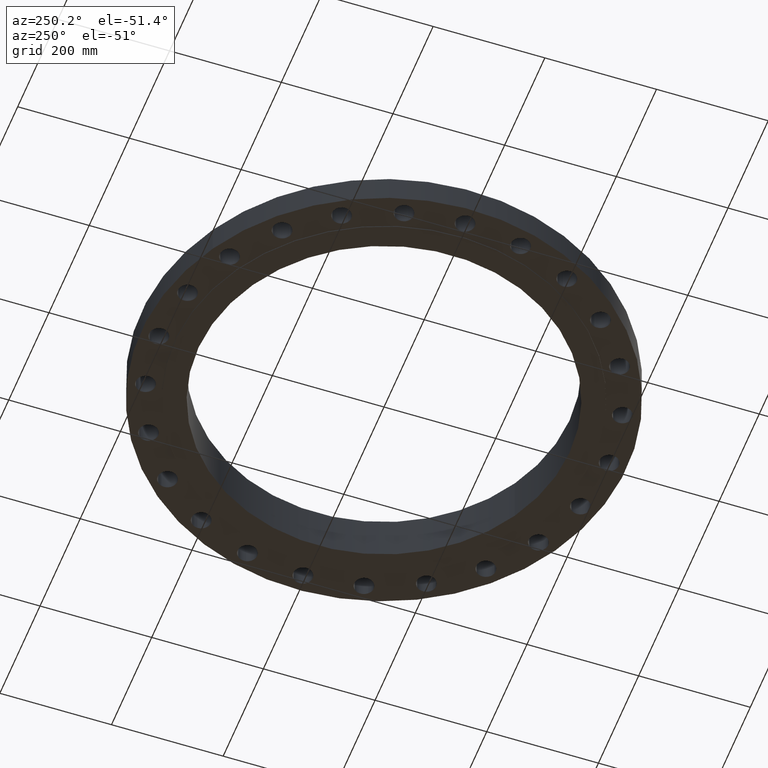
[diagram: clean part render]
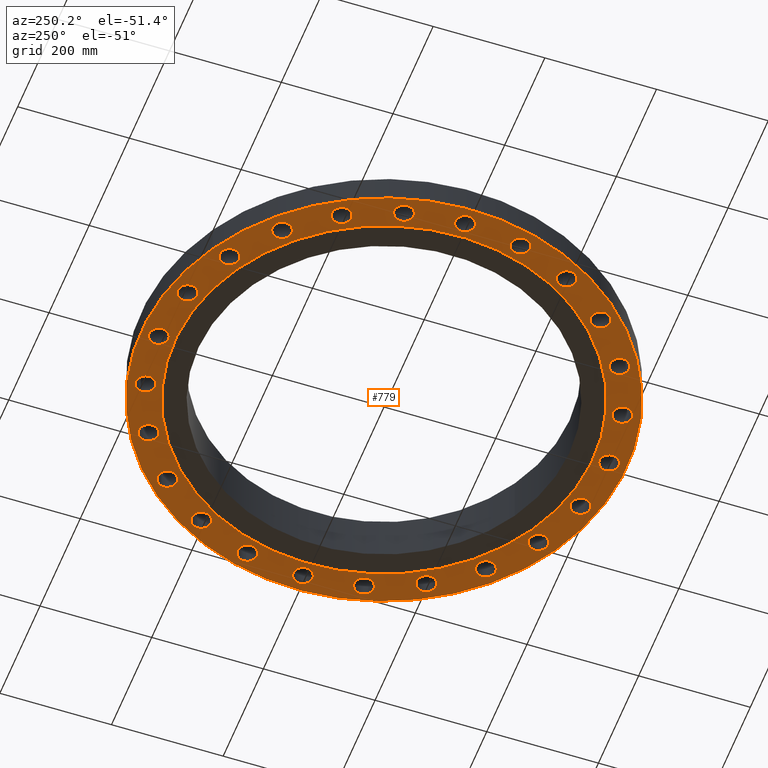
[diagram: same view with one face highlighted and labeled with its STEP entity id]
A machine part, auxiliary view. The second image highlights one B-rep face of the part: STEP entity #779.
In plain terms, the highlighted planar face has unit normal (0, 0, 1).
Its self-contained STEP definition (entity closure, byte-faithful):
#51=AXIS2_PLACEMENT_3D('Circle Axis2P3D',#49,#50,$) ;
#77=AXIS2_PLACEMENT_3D('Circle Axis2P3D',#75,#76,$) ;
#122=AXIS2_PLACEMENT_3D('Circle Axis2P3D',#120,#121,$) ;
#139=AXIS2_PLACEMENT_3D('Circle Axis2P3D',#137,#138,$) ;
#165=AXIS2_PLACEMENT_3D('Circle Axis2P3D',#163,#164,$) ;
#191=AXIS2_PLACEMENT_3D('Circle Axis2P3D',#189,#190,$) ;
#351=AXIS2_PLACEMENT_3D('Plane Axis2P3D',#348,#349,#350) ;
#367=AXIS2_PLACEMENT_3D('Circle Axis2P3D',#365,#366,$) ;
#376=AXIS2_PLACEMENT_3D('Circle Axis2P3D',#374,#375,$) ;
#385=AXIS2_PLACEMENT_3D('Circle Axis2P3D',#383,#384,$) ;
#394=AXIS2_PLACEMENT_3D('Circle Axis2P3D',#392,#393,$) ;
#403=AXIS2_PLACEMENT_3D('Circle Axis2P3D',#401,#402,$) ;
#412=AXIS2_PLACEMENT_3D('Circle Axis2P3D',#410,#411,$) ;
#421=AXIS2_PLACEMENT_3D('Circle Axis2P3D',#419,#420,$) ;
#430=AXIS2_PLACEMENT_3D('Circle Axis2P3D',#428,#429,$) ;
#439=AXIS2_PLACEMENT_3D('Circle Axis2P3D',#437,#438,$) ;
#448=AXIS2_PLACEMENT_3D('Circle Axis2P3D',#446,#447,$) ;
#457=AXIS2_PLACEMENT_3D('Circle Axis2P3D',#455,#456,$) ;
#466=AXIS2_PLACEMENT_3D('Circle Axis2P3D',#464,#465,$) ;
#475=AXIS2_PLACEMENT_3D('Circle Axis2P3D',#473,#474,$) ;
#484=AXIS2_PLACEMENT_3D('Circle Axis2P3D',#482,#483,$) ;
#493=AXIS2_PLACEMENT_3D('Circle Axis2P3D',#491,#492,$) ;
#502=AXIS2_PLACEMENT_3D('Circle Axis2P3D',#500,#501,$) ;
#511=AXIS2_PLACEMENT_3D('Circle Axis2P3D',#509,#510,$) ;
#520=AXIS2_PLACEMENT_3D('Circle Axis2P3D',#518,#519,$) ;
#529=AXIS2_PLACEMENT_3D('Circle Axis2P3D',#527,#528,$) ;
#538=AXIS2_PLACEMENT_3D('Circle Axis2P3D',#536,#537,$) ;
#547=AXIS2_PLACEMENT_3D('Circle Axis2P3D',#545,#546,$) ;
#556=AXIS2_PLACEMENT_3D('Circle Axis2P3D',#554,#555,$) ;
#565=AXIS2_PLACEMENT_3D('Circle Axis2P3D',#563,#564,$) ;
#574=AXIS2_PLACEMENT_3D('Circle Axis2P3D',#572,#573,$) ;
#583=AXIS2_PLACEMENT_3D('Circle Axis2P3D',#581,#582,$) ;
#592=AXIS2_PLACEMENT_3D('Circle Axis2P3D',#590,#591,$) ;
#601=AXIS2_PLACEMENT_3D('Circle Axis2P3D',#599,#600,$) ;
#610=AXIS2_PLACEMENT_3D('Circle Axis2P3D',#608,#609,$) ;
#619=AXIS2_PLACEMENT_3D('Circle Axis2P3D',#617,#618,$) ;
#628=AXIS2_PLACEMENT_3D('Circle Axis2P3D',#626,#627,$) ;
#637=AXIS2_PLACEMENT_3D('Circle Axis2P3D',#635,#636,$) ;
#646=AXIS2_PLACEMENT_3D('Circle Axis2P3D',#644,#645,$) ;
#655=AXIS2_PLACEMENT_3D('Circle Axis2P3D',#653,#654,$) ;
#664=AXIS2_PLACEMENT_3D('Circle Axis2P3D',#662,#663,$) ;
#673=AXIS2_PLACEMENT_3D('Circle Axis2P3D',#671,#672,$) ;
#682=AXIS2_PLACEMENT_3D('Circle Axis2P3D',#680,#681,$) ;
#691=AXIS2_PLACEMENT_3D('Circle Axis2P3D',#689,#690,$) ;
#700=AXIS2_PLACEMENT_3D('Circle Axis2P3D',#698,#699,$) ;
#709=AXIS2_PLACEMENT_3D('Circle Axis2P3D',#707,#708,$) ;
#718=AXIS2_PLACEMENT_3D('Circle Axis2P3D',#716,#717,$) ;
#727=AXIS2_PLACEMENT_3D('Circle Axis2P3D',#725,#726,$) ;
#736=AXIS2_PLACEMENT_3D('Circle Axis2P3D',#734,#735,$) ;
#745=AXIS2_PLACEMENT_3D('Circle Axis2P3D',#743,#744,$) ;
#754=AXIS2_PLACEMENT_3D('Circle Axis2P3D',#752,#753,$) ;
#763=AXIS2_PLACEMENT_3D('Circle Axis2P3D',#761,#762,$) ;
#772=AXIS2_PLACEMENT_3D('Circle Axis2P3D',#770,#771,$) ;
#44=CARTESIAN_POINT('Vertex',(15.2716619888,0.329605057792,0.)) ;
#49=CARTESIAN_POINT('Axis2P3D Location',(15.8750000001,0.,0.)) ;
#53=CARTESIAN_POINT('Vertex',(16.4783380114,-0.329605057792,0.)) ;
#75=CARTESIAN_POINT('Axis2P3D Location',(15.8750000001,0.,0.)) ;
#101=CARTESIAN_POINT('Vertex',(-8.21016234863,15.0286013724,-4.86749748119E-014)) ;
#117=CARTESIAN_POINT('Vertex',(8.21016234863,-15.0286013724,-4.86749748119E-014)) ;
#120=CARTESIAN_POINT('Axis2P3D Location',(0.,0.,-4.86749748119E-014)) ;
#137=CARTESIAN_POINT('Axis2P3D Location',(0.,0.,-4.86749748119E-014)) ;
#160=CARTESIAN_POINT('Vertex',(7.07152669444,-12.9443427879,-1.53857679003E-014)) ;
#163=CARTESIAN_POINT('Axis2P3D Location',(0.,0.,-1.53857679003E-014)) ;
#167=CARTESIAN_POINT('Vertex',(-7.07152669444,12.9443427879,-1.53857679003E-014)) ;
#189=CARTESIAN_POINT('Axis2P3D Location',(0.,0.,-1.53857679003E-014)) ;
#348=CARTESIAN_POINT('Axis2P3D Location',(0.,17.1250000001,0.)) ;
#365=CARTESIAN_POINT('Axis2P3D Location',(15.3340724924,4.10875234102,0.)) ;
#369=CARTESIAN_POINT('Vertex',(14.665984659,4.27097101086,0.)) ;
#371=CARTESIAN_POINT('Vertex',(16.0021603258,3.94653367118,0.)) ;
#374=CARTESIAN_POINT('Axis2P3D Location',(15.3340724924,4.10875234102,0.)) ;
#383=CARTESIAN_POINT('Axis2P3D Location',(13.7481532851,7.93750000003,0.)) ;
#387=CARTESIAN_POINT('Vertex',(13.0608447114,7.92127734764,0.)) ;
#389=CARTESIAN_POINT('Vertex',(14.4354618589,7.95372265242,0.)) ;
#392=CARTESIAN_POINT('Axis2P3D Location',(13.7481532851,7.93750000003,0.)) ;
#401=CARTESIAN_POINT('Axis2P3D Location',(11.2253201514,11.2253201514,0.)) ;
#405=CARTESIAN_POINT('Vertex',(10.5656297808,11.0317617237,0.)) ;
#407=CARTESIAN_POINT('Vertex',(11.885010522,11.418878579,0.)) ;
#410=CARTESIAN_POINT('Axis2P3D Location',(11.2253201514,11.2253201514,0.)) ;
#419=CARTESIAN_POINT('Axis2P3D Location',(7.93750000003,13.7481532851,0.)) ;
#423=CARTESIAN_POINT('Vertex',(7.35038464112,13.3904497692,0.)) ;
#425=CARTESIAN_POINT('Vertex',(8.52461535895,14.1058568011,0.)) ;
#428=CARTESIAN_POINT('Axis2P3D Location',(7.93750000003,13.7481532851,0.)) ;
#437=CARTESIAN_POINT('Axis2P3D Location',(4.10875234102,15.3340724924,0.)) ;
#441=CARTESIAN_POINT('Vertex',(3.63422293526,14.8366007916,0.)) ;
#443=CARTESIAN_POINT('Vertex',(4.58328174677,15.8315441932,0.)) ;
#446=CARTESIAN_POINT('Axis2P3D Location',(4.10875234102,15.3340724924,0.)) ;
#455=CARTESIAN_POINT('Axis2P3D Location',(5.59482469102E-016,15.8750000001,0.)) ;
#459=CARTESIAN_POINT('Vertex',(-0.329605057792,15.2716619888,0.)) ;
#461=CARTESIAN_POINT('Vertex',(0.329605057792,16.4783380114,0.)) ;
#464=CARTESIAN_POINT('Axis2P3D Location',(1.88825333322E-015,15.8750000001,0.)) ;
#473=CARTESIAN_POINT('Axis2P3D Location',(-4.10875234102,15.3340724924,0.)) ;
#477=CARTESIAN_POINT('Vertex',(-4.27097101086,14.665984659,0.)) ;
#479=CARTESIAN_POINT('Vertex',(-3.94653367118,16.0021603258,0.)) ;
#482=CARTESIAN_POINT('Axis2P3D Location',(-4.10875234102,15.3340724924,0.)) ;
#491=CARTESIAN_POINT('Axis2P3D Location',(-7.93750000003,13.7481532851,0.)) ;
#495=CARTESIAN_POINT('Vertex',(-7.92127734764,13.0608447114,0.)) ;
#497=CARTESIAN_POINT('Vertex',(-7.95372265242,14.4354618589,0.)) ;
#500=CARTESIAN_POINT('Axis2P3D Location',(-7.93750000003,13.7481532851,0.)) ;
#509=CARTESIAN_POINT('Axis2P3D Location',(-11.2253201514,11.2253201514,0.)) ;
#513=CARTESIAN_POINT('Vertex',(-11.0317617237,10.5656297808,0.)) ;
#515=CARTESIAN_POINT('Vertex',(-11.418878579,11.885010522,0.)) ;
#518=CARTESIAN_POINT('Axis2P3D Location',(-11.2253201514,11.2253201514,0.)) ;
#527=CARTESIAN_POINT('Axis2P3D Location',(-13.7481532851,7.93750000003,0.)) ;
#531=CARTESIAN_POINT('Vertex',(-13.3904497692,7.35038464112,0.)) ;
#533=CARTESIAN_POINT('Vertex',(-14.1058568011,8.52461535895,0.)) ;
#536=CARTESIAN_POINT('Axis2P3D Location',(-13.7481532851,7.93750000003,0.)) ;
#545=CARTESIAN_POINT('Axis2P3D Location',(-15.3340724924,4.10875234102,0.)) ;
#549=CARTESIAN_POINT('Vertex',(-14.8366007916,3.63422293526,0.)) ;
#551=CARTESIAN_POINT('Vertex',(-15.8315441932,4.58328174677,0.)) ;
#554=CARTESIAN_POINT('Axis2P3D Location',(-15.3340724924,4.10875234102,0.)) ;
#563=CARTESIAN_POINT('Axis2P3D Location',(-15.8750000001,2.23792987641E-015,0.)) ;
#567=CARTESIAN_POINT('Vertex',(-15.2716619888,-0.329605057792,0.)) ;
#569=CARTESIAN_POINT('Vertex',(-16.4783380114,0.329605057792,0.)) ;
#572=CARTESIAN_POINT('Axis2P3D Location',(-15.8750000001,2.23792987641E-015,0.)) ;
#581=CARTESIAN_POINT('Axis2P3D Location',(-15.3340724924,-4.10875234102,0.)) ;
#585=CARTESIAN_POINT('Vertex',(-14.665984659,-4.27097101086,0.)) ;
#587=CARTESIAN_POINT('Vertex',(-16.0021603258,-3.94653367118,0.)) ;
#590=CARTESIAN_POINT('Axis2P3D Location',(-15.3340724924,-4.10875234102,0.)) ;
#599=CARTESIAN_POINT('Axis2P3D Location',(-13.7481532851,-7.93750000003,0.)) ;
#603=CARTESIAN_POINT('Vertex',(-13.0608447114,-7.92127734764,0.)) ;
#605=CARTESIAN_POINT('Vertex',(-14.4354618589,-7.95372265242,0.)) ;
#608=CARTESIAN_POINT('Axis2P3D Location',(-13.7481532851,-7.93750000003,0.)) ;
#617=CARTESIAN_POINT('Axis2P3D Location',(-11.2253201514,-11.2253201514,0.)) ;
#621=CARTESIAN_POINT('Vertex',(-10.5656297808,-11.0317617237,0.)) ;
#623=CARTESIAN_POINT('Vertex',(-11.885010522,-11.418878579,0.)) ;
#626=CARTESIAN_POINT('Axis2P3D Location',(-11.2253201514,-11.2253201514,0.)) ;
#635=CARTESIAN_POINT('Axis2P3D Location',(-7.93750000003,-13.7481532851,0.)) ;
#639=CARTESIAN_POINT('Vertex',(-7.35038464112,-13.3904497692,0.)) ;
#641=CARTESIAN_POINT('Vertex',(-8.52461535895,-14.1058568011,0.)) ;
#644=CARTESIAN_POINT('Axis2P3D Location',(-7.93750000003,-13.7481532851,0.)) ;
#653=CARTESIAN_POINT('Axis2P3D Location',(-4.10875234102,-15.3340724924,0.)) ;
#657=CARTESIAN_POINT('Vertex',(-3.63422293526,-14.8366007916,0.)) ;
#659=CARTESIAN_POINT('Vertex',(-4.58328174677,-15.8315441932,0.)) ;
#662=CARTESIAN_POINT('Axis2P3D Location',(-4.10875234102,-15.3340724924,0.)) ;
#671=CARTESIAN_POINT('Axis2P3D Location',(-2.16799456777E-015,-15.8750000001,0.)) ;
#675=CARTESIAN_POINT('Vertex',(0.329605057792,-15.2716619888,0.)) ;
#677=CARTESIAN_POINT('Vertex',(-0.329605057792,-16.4783380114,0.)) ;
#680=CARTESIAN_POINT('Axis2P3D Location',(-2.09805925913E-015,-15.8750000001,0.)) ;
#689=CARTESIAN_POINT('Axis2P3D Location',(4.10875234102,-15.3340724924,0.)) ;
#693=CARTESIAN_POINT('Vertex',(4.27097101086,-14.665984659,0.)) ;
#695=CARTESIAN_POINT('Vertex',(3.94653367118,-16.0021603258,0.)) ;
#698=CARTESIAN_POINT('Axis2P3D Location',(4.10875234102,-15.3340724924,0.)) ;
#707=CARTESIAN_POINT('Axis2P3D Location',(7.93750000003,-13.7481532851,0.)) ;
#711=CARTESIAN_POINT('Vertex',(7.92127734764,-13.0608447114,0.)) ;
#713=CARTESIAN_POINT('Vertex',(7.95372265242,-14.4354618589,0.)) ;
#716=CARTESIAN_POINT('Axis2P3D Location',(7.93750000003,-13.7481532851,0.)) ;
#725=CARTESIAN_POINT('Axis2P3D Location',(11.2253201514,-11.2253201514,0.)) ;
#729=CARTESIAN_POINT('Vertex',(11.0317617237,-10.5656297808,0.)) ;
#731=CARTESIAN_POINT('Vertex',(11.418878579,-11.885010522,0.)) ;
#734=CARTESIAN_POINT('Axis2P3D Location',(11.2253201514,-11.2253201514,0.)) ;
#743=CARTESIAN_POINT('Axis2P3D Location',(13.7481532851,-7.93750000003,0.)) ;
#747=CARTESIAN_POINT('Vertex',(13.3904497692,-7.35038464112,0.)) ;
#749=CARTESIAN_POINT('Vertex',(14.1058568011,-8.52461535895,0.)) ;
#752=CARTESIAN_POINT('Axis2P3D Location',(13.7481532851,-7.93750000003,0.)) ;
#761=CARTESIAN_POINT('Axis2P3D Location',(15.3340724924,-4.10875234102,0.)) ;
#765=CARTESIAN_POINT('Vertex',(14.8366007916,-3.63422293526,0.)) ;
#767=CARTESIAN_POINT('Vertex',(15.8315441932,-4.58328174677,0.)) ;
#770=CARTESIAN_POINT('Axis2P3D Location',(15.3340724924,-4.10875234102,0.)) ;
#50=DIRECTION('Axis2P3D Direction',(0.,-0.,-0.0393700787402)) ;
#76=DIRECTION('Axis2P3D Direction',(0.,-0.,-0.0393700787402)) ;
#121=DIRECTION('Axis2P3D Direction',(0.,0.,0.0393700787402)) ;
#138=DIRECTION('Axis2P3D Direction',(0.,0.,0.0393700787402)) ;
#164=DIRECTION('Axis2P3D Direction',(0.,0.,0.0393700787402)) ;
#190=DIRECTION('Axis2P3D Direction',(0.,0.,0.0393700787402)) ;
#349=DIRECTION('Axis2P3D Direction',(0.,0.,0.0393700787402)) ;
#350=DIRECTION('Axis2P3D XDirection',(0.0393700787402,0.,0.)) ;
#366=DIRECTION('Axis2P3D Direction',(0.,0.,0.0393700787402)) ;
#375=DIRECTION('Axis2P3D Direction',(0.,0.,0.0393700787402)) ;
#384=DIRECTION('Axis2P3D Direction',(0.,0.,0.0393700787402)) ;
#393=DIRECTION('Axis2P3D Direction',(0.,0.,0.0393700787402)) ;
#402=DIRECTION('Axis2P3D Direction',(0.,0.,0.0393700787402)) ;
#411=DIRECTION('Axis2P3D Direction',(0.,0.,0.0393700787402)) ;
#420=DIRECTION('Axis2P3D Direction',(0.,0.,0.0393700787402)) ;
#429=DIRECTION('Axis2P3D Direction',(0.,0.,0.0393700787402)) ;
#438=DIRECTION('Axis2P3D Direction',(0.,0.,0.0393700787402)) ;
#447=DIRECTION('Axis2P3D Direction',(0.,0.,0.0393700787402)) ;
#456=DIRECTION('Axis2P3D Direction',(0.,0.,0.0393700787402)) ;
#465=DIRECTION('Axis2P3D Direction',(0.,0.,0.0393700787402)) ;
#474=DIRECTION('Axis2P3D Direction',(0.,0.,0.0393700787402)) ;
#483=DIRECTION('Axis2P3D Direction',(0.,0.,0.0393700787402)) ;
#492=DIRECTION('Axis2P3D Direction',(0.,0.,0.0393700787402)) ;
#501=DIRECTION('Axis2P3D Direction',(0.,0.,0.0393700787402)) ;
#510=DIRECTION('Axis2P3D Direction',(0.,0.,0.0393700787402)) ;
#519=DIRECTION('Axis2P3D Direction',(0.,0.,0.0393700787402)) ;
#528=DIRECTION('Axis2P3D Direction',(0.,0.,0.0393700787402)) ;
#537=DIRECTION('Axis2P3D Direction',(0.,0.,0.0393700787402)) ;
#546=DIRECTION('Axis2P3D Direction',(0.,0.,0.0393700787402)) ;
#555=DIRECTION('Axis2P3D Direction',(0.,0.,0.0393700787402)) ;
#564=DIRECTION('Axis2P3D Direction',(0.,0.,0.0393700787402)) ;
#573=DIRECTION('Axis2P3D Direction',(0.,0.,0.0393700787402)) ;
#582=DIRECTION('Axis2P3D Direction',(0.,0.,0.0393700787402)) ;
#591=DIRECTION('Axis2P3D Direction',(0.,0.,0.0393700787402)) ;
#600=DIRECTION('Axis2P3D Direction',(0.,0.,0.0393700787402)) ;
#609=DIRECTION('Axis2P3D Direction',(0.,0.,0.0393700787402)) ;
#618=DIRECTION('Axis2P3D Direction',(0.,0.,0.0393700787402)) ;
#627=DIRECTION('Axis2P3D Direction',(0.,0.,0.0393700787402)) ;
#636=DIRECTION('Axis2P3D Direction',(0.,0.,0.0393700787402)) ;
#645=DIRECTION('Axis2P3D Direction',(0.,0.,0.0393700787402)) ;
#654=DIRECTION('Axis2P3D Direction',(0.,0.,0.0393700787402)) ;
#663=DIRECTION('Axis2P3D Direction',(0.,0.,0.0393700787402)) ;
#672=DIRECTION('Axis2P3D Direction',(0.,0.,0.0393700787402)) ;
#681=DIRECTION('Axis2P3D Direction',(0.,0.,0.0393700787402)) ;
#690=DIRECTION('Axis2P3D Direction',(0.,0.,0.0393700787402)) ;
#699=DIRECTION('Axis2P3D Direction',(0.,0.,0.0393700787402)) ;
#708=DIRECTION('Axis2P3D Direction',(0.,0.,0.0393700787402)) ;
#717=DIRECTION('Axis2P3D Direction',(0.,0.,0.0393700787402)) ;
#726=DIRECTION('Axis2P3D Direction',(0.,0.,0.0393700787402)) ;
#735=DIRECTION('Axis2P3D Direction',(0.,0.,0.0393700787402)) ;
#744=DIRECTION('Axis2P3D Direction',(0.,0.,0.0393700787402)) ;
#753=DIRECTION('Axis2P3D Direction',(0.,0.,0.0393700787402)) ;
#762=DIRECTION('Axis2P3D Direction',(0.,0.,0.0393700787402)) ;
#771=DIRECTION('Axis2P3D Direction',(0.,0.,0.0393700787402)) ;
#354=ORIENTED_EDGE('',*,*,#141,.F.) ;
#355=ORIENTED_EDGE('',*,*,#124,.F.) ;
#358=ORIENTED_EDGE('',*,*,#55,.T.) ;
#359=ORIENTED_EDGE('',*,*,#79,.T.) ;
#362=ORIENTED_EDGE('',*,*,#193,.T.) ;
#363=ORIENTED_EDGE('',*,*,#169,.T.) ;
#380=ORIENTED_EDGE('',*,*,#373,.T.) ;
#381=ORIENTED_EDGE('',*,*,#378,.T.) ;
#398=ORIENTED_EDGE('',*,*,#391,.T.) ;
#399=ORIENTED_EDGE('',*,*,#396,.T.) ;
#416=ORIENTED_EDGE('',*,*,#409,.T.) ;
#417=ORIENTED_EDGE('',*,*,#414,.T.) ;
#434=ORIENTED_EDGE('',*,*,#427,.T.) ;
#435=ORIENTED_EDGE('',*,*,#432,.T.) ;
#452=ORIENTED_EDGE('',*,*,#445,.T.) ;
#453=ORIENTED_EDGE('',*,*,#450,.T.) ;
#470=ORIENTED_EDGE('',*,*,#463,.T.) ;
#471=ORIENTED_EDGE('',*,*,#468,.T.) ;
#488=ORIENTED_EDGE('',*,*,#481,.T.) ;
#489=ORIENTED_EDGE('',*,*,#486,.T.) ;
#506=ORIENTED_EDGE('',*,*,#499,.T.) ;
#507=ORIENTED_EDGE('',*,*,#504,.T.) ;
#524=ORIENTED_EDGE('',*,*,#517,.T.) ;
#525=ORIENTED_EDGE('',*,*,#522,.T.) ;
#542=ORIENTED_EDGE('',*,*,#535,.T.) ;
#543=ORIENTED_EDGE('',*,*,#540,.T.) ;
#560=ORIENTED_EDGE('',*,*,#553,.T.) ;
#561=ORIENTED_EDGE('',*,*,#558,.T.) ;
#578=ORIENTED_EDGE('',*,*,#571,.T.) ;
#579=ORIENTED_EDGE('',*,*,#576,.T.) ;
#596=ORIENTED_EDGE('',*,*,#589,.T.) ;
#597=ORIENTED_EDGE('',*,*,#594,.T.) ;
#614=ORIENTED_EDGE('',*,*,#607,.T.) ;
#615=ORIENTED_EDGE('',*,*,#612,.T.) ;
#632=ORIENTED_EDGE('',*,*,#625,.T.) ;
#633=ORIENTED_EDGE('',*,*,#630,.T.) ;
#650=ORIENTED_EDGE('',*,*,#643,.T.) ;
#651=ORIENTED_EDGE('',*,*,#648,.T.) ;
#668=ORIENTED_EDGE('',*,*,#661,.T.) ;
#669=ORIENTED_EDGE('',*,*,#666,.T.) ;
#686=ORIENTED_EDGE('',*,*,#679,.T.) ;
#687=ORIENTED_EDGE('',*,*,#684,.T.) ;
#704=ORIENTED_EDGE('',*,*,#697,.T.) ;
#705=ORIENTED_EDGE('',*,*,#702,.T.) ;
#722=ORIENTED_EDGE('',*,*,#715,.T.) ;
#723=ORIENTED_EDGE('',*,*,#720,.T.) ;
#740=ORIENTED_EDGE('',*,*,#733,.T.) ;
#741=ORIENTED_EDGE('',*,*,#738,.T.) ;
#758=ORIENTED_EDGE('',*,*,#751,.T.) ;
#759=ORIENTED_EDGE('',*,*,#756,.T.) ;
#776=ORIENTED_EDGE('',*,*,#769,.T.) ;
#777=ORIENTED_EDGE('',*,*,#774,.T.) ;
#360=FACE_BOUND('',#357,.T.) ;
#364=FACE_BOUND('',#361,.T.) ;
#382=FACE_BOUND('',#379,.T.) ;
#400=FACE_BOUND('',#397,.T.) ;
#418=FACE_BOUND('',#415,.T.) ;
#436=FACE_BOUND('',#433,.T.) ;
#454=FACE_BOUND('',#451,.T.) ;
#472=FACE_BOUND('',#469,.T.) ;
#490=FACE_BOUND('',#487,.T.) ;
#508=FACE_BOUND('',#505,.T.) ;
#526=FACE_BOUND('',#523,.T.) ;
#544=FACE_BOUND('',#541,.T.) ;
#562=FACE_BOUND('',#559,.T.) ;
#580=FACE_BOUND('',#577,.T.) ;
#598=FACE_BOUND('',#595,.T.) ;
#616=FACE_BOUND('',#613,.T.) ;
#634=FACE_BOUND('',#631,.T.) ;
#652=FACE_BOUND('',#649,.T.) ;
#670=FACE_BOUND('',#667,.T.) ;
#688=FACE_BOUND('',#685,.T.) ;
#706=FACE_BOUND('',#703,.T.) ;
#724=FACE_BOUND('',#721,.T.) ;
#742=FACE_BOUND('',#739,.T.) ;
#760=FACE_BOUND('',#757,.T.) ;
#778=FACE_BOUND('',#775,.T.) ;
#779=ADVANCED_FACE('PartBody',(#356,#360,#364,#382,#400,#418,#436,#454,#472,#490,#508,#526,#544,#562,#580,#598,#616,#634,#652,#670,#688,#706,#724,#742,#760,#778),#352,.F.) ;
#52=CIRCLE('generated circle',#51,0.687500000003) ;
#78=CIRCLE('generated circle',#77,0.687500000003) ;
#123=CIRCLE('generated circle',#122,17.1250000001) ;
#140=CIRCLE('generated circle',#139,17.1250000001) ;
#166=CIRCLE('generated circle',#165,14.7500000001) ;
#192=CIRCLE('generated circle',#191,14.7500000001) ;
#368=CIRCLE('generated circle',#367,0.687500000003) ;
#377=CIRCLE('generated circle',#376,0.687500000003) ;
#386=CIRCLE('generated circle',#385,0.687500000003) ;
#395=CIRCLE('generated circle',#394,0.687500000003) ;
#404=CIRCLE('generated circle',#403,0.687500000003) ;
#413=CIRCLE('generated circle',#412,0.687500000003) ;
#422=CIRCLE('generated circle',#421,0.687500000003) ;
#431=CIRCLE('generated circle',#430,0.687500000003) ;
#440=CIRCLE('generated circle',#439,0.687500000003) ;
#449=CIRCLE('generated circle',#448,0.687500000003) ;
#458=CIRCLE('generated circle',#457,0.687500000003) ;
#467=CIRCLE('generated circle',#466,0.687500000003) ;
#476=CIRCLE('generated circle',#475,0.687500000003) ;
#485=CIRCLE('generated circle',#484,0.687500000003) ;
#494=CIRCLE('generated circle',#493,0.687500000003) ;
#503=CIRCLE('generated circle',#502,0.687500000003) ;
#512=CIRCLE('generated circle',#511,0.687500000003) ;
#521=CIRCLE('generated circle',#520,0.687500000003) ;
#530=CIRCLE('generated circle',#529,0.687500000003) ;
#539=CIRCLE('generated circle',#538,0.687500000003) ;
#548=CIRCLE('generated circle',#547,0.687500000003) ;
#557=CIRCLE('generated circle',#556,0.687500000003) ;
#566=CIRCLE('generated circle',#565,0.687500000003) ;
#575=CIRCLE('generated circle',#574,0.687500000003) ;
#584=CIRCLE('generated circle',#583,0.687500000003) ;
#593=CIRCLE('generated circle',#592,0.687500000003) ;
#602=CIRCLE('generated circle',#601,0.687500000003) ;
#611=CIRCLE('generated circle',#610,0.687500000003) ;
#620=CIRCLE('generated circle',#619,0.687500000003) ;
#629=CIRCLE('generated circle',#628,0.687500000003) ;
#638=CIRCLE('generated circle',#637,0.687500000003) ;
#647=CIRCLE('generated circle',#646,0.687500000003) ;
#656=CIRCLE('generated circle',#655,0.687500000003) ;
#665=CIRCLE('generated circle',#664,0.687500000003) ;
#674=CIRCLE('generated circle',#673,0.687500000003) ;
#683=CIRCLE('generated circle',#682,0.687500000003) ;
#692=CIRCLE('generated circle',#691,0.687500000003) ;
#701=CIRCLE('generated circle',#700,0.687500000003) ;
#710=CIRCLE('generated circle',#709,0.687500000003) ;
#719=CIRCLE('generated circle',#718,0.687500000003) ;
#728=CIRCLE('generated circle',#727,0.687500000003) ;
#737=CIRCLE('generated circle',#736,0.687500000003) ;
#746=CIRCLE('generated circle',#745,0.687500000003) ;
#755=CIRCLE('generated circle',#754,0.687500000003) ;
#764=CIRCLE('generated circle',#763,0.687500000003) ;
#773=CIRCLE('generated circle',#772,0.687500000003) ;
#55=EDGE_CURVE('',#54,#45,#52,.F.) ;
#79=EDGE_CURVE('',#45,#54,#78,.F.) ;
#124=EDGE_CURVE('',#118,#102,#123,.T.) ;
#141=EDGE_CURVE('',#102,#118,#140,.T.) ;
#169=EDGE_CURVE('',#168,#161,#166,.T.) ;
#193=EDGE_CURVE('',#161,#168,#192,.T.) ;
#373=EDGE_CURVE('',#370,#372,#368,.T.) ;
#378=EDGE_CURVE('',#372,#370,#377,.T.) ;
#391=EDGE_CURVE('',#388,#390,#386,.T.) ;
#396=EDGE_CURVE('',#390,#388,#395,.T.) ;
#409=EDGE_CURVE('',#406,#408,#404,.T.) ;
#414=EDGE_CURVE('',#408,#406,#413,.T.) ;
#427=EDGE_CURVE('',#424,#426,#422,.T.) ;
#432=EDGE_CURVE('',#426,#424,#431,.T.) ;
#445=EDGE_CURVE('',#442,#444,#440,.T.) ;
#450=EDGE_CURVE('',#444,#442,#449,.T.) ;
#463=EDGE_CURVE('',#460,#462,#458,.T.) ;
#468=EDGE_CURVE('',#462,#460,#467,.T.) ;
#481=EDGE_CURVE('',#478,#480,#476,.T.) ;
#486=EDGE_CURVE('',#480,#478,#485,.T.) ;
#499=EDGE_CURVE('',#496,#498,#494,.T.) ;
#504=EDGE_CURVE('',#498,#496,#503,.T.) ;
#517=EDGE_CURVE('',#514,#516,#512,.T.) ;
#522=EDGE_CURVE('',#516,#514,#521,.T.) ;
#535=EDGE_CURVE('',#532,#534,#530,.T.) ;
#540=EDGE_CURVE('',#534,#532,#539,.T.) ;
#553=EDGE_CURVE('',#550,#552,#548,.T.) ;
#558=EDGE_CURVE('',#552,#550,#557,.T.) ;
#571=EDGE_CURVE('',#568,#570,#566,.T.) ;
#576=EDGE_CURVE('',#570,#568,#575,.T.) ;
#589=EDGE_CURVE('',#586,#588,#584,.T.) ;
#594=EDGE_CURVE('',#588,#586,#593,.T.) ;
#607=EDGE_CURVE('',#604,#606,#602,.T.) ;
#612=EDGE_CURVE('',#606,#604,#611,.T.) ;
#625=EDGE_CURVE('',#622,#624,#620,.T.) ;
#630=EDGE_CURVE('',#624,#622,#629,.T.) ;
#643=EDGE_CURVE('',#640,#642,#638,.T.) ;
#648=EDGE_CURVE('',#642,#640,#647,.T.) ;
#661=EDGE_CURVE('',#658,#660,#656,.T.) ;
#666=EDGE_CURVE('',#660,#658,#665,.T.) ;
#679=EDGE_CURVE('',#676,#678,#674,.T.) ;
#684=EDGE_CURVE('',#678,#676,#683,.T.) ;
#697=EDGE_CURVE('',#694,#696,#692,.T.) ;
#702=EDGE_CURVE('',#696,#694,#701,.T.) ;
#715=EDGE_CURVE('',#712,#714,#710,.T.) ;
#720=EDGE_CURVE('',#714,#712,#719,.T.) ;
#733=EDGE_CURVE('',#730,#732,#728,.T.) ;
#738=EDGE_CURVE('',#732,#730,#737,.T.) ;
#751=EDGE_CURVE('',#748,#750,#746,.T.) ;
#756=EDGE_CURVE('',#750,#748,#755,.T.) ;
#769=EDGE_CURVE('',#766,#768,#764,.T.) ;
#774=EDGE_CURVE('',#768,#766,#773,.T.) ;
#353=EDGE_LOOP('',(#354,#355)) ;
#357=EDGE_LOOP('',(#358,#359)) ;
#361=EDGE_LOOP('',(#362,#363)) ;
#379=EDGE_LOOP('',(#380,#381)) ;
#397=EDGE_LOOP('',(#398,#399)) ;
#415=EDGE_LOOP('',(#416,#417)) ;
#433=EDGE_LOOP('',(#434,#435)) ;
#451=EDGE_LOOP('',(#452,#453)) ;
#469=EDGE_LOOP('',(#470,#471)) ;
#487=EDGE_LOOP('',(#488,#489)) ;
#505=EDGE_LOOP('',(#506,#507)) ;
#523=EDGE_LOOP('',(#524,#525)) ;
#541=EDGE_LOOP('',(#542,#543)) ;
#559=EDGE_LOOP('',(#560,#561)) ;
#577=EDGE_LOOP('',(#578,#579)) ;
#595=EDGE_LOOP('',(#596,#597)) ;
#613=EDGE_LOOP('',(#614,#615)) ;
#631=EDGE_LOOP('',(#632,#633)) ;
#649=EDGE_LOOP('',(#650,#651)) ;
#667=EDGE_LOOP('',(#668,#669)) ;
#685=EDGE_LOOP('',(#686,#687)) ;
#703=EDGE_LOOP('',(#704,#705)) ;
#721=EDGE_LOOP('',(#722,#723)) ;
#739=EDGE_LOOP('',(#740,#741)) ;
#757=EDGE_LOOP('',(#758,#759)) ;
#775=EDGE_LOOP('',(#776,#777)) ;
#356=FACE_OUTER_BOUND('',#353,.T.) ;
#352=PLANE('',#351) ;
#45=VERTEX_POINT('',#44) ;
#54=VERTEX_POINT('',#53) ;
#102=VERTEX_POINT('',#101) ;
#118=VERTEX_POINT('',#117) ;
#161=VERTEX_POINT('',#160) ;
#168=VERTEX_POINT('',#167) ;
#370=VERTEX_POINT('',#369) ;
#372=VERTEX_POINT('',#371) ;
#388=VERTEX_POINT('',#387) ;
#390=VERTEX_POINT('',#389) ;
#406=VERTEX_POINT('',#405) ;
#408=VERTEX_POINT('',#407) ;
#424=VERTEX_POINT('',#423) ;
#426=VERTEX_POINT('',#425) ;
#442=VERTEX_POINT('',#441) ;
#444=VERTEX_POINT('',#443) ;
#460=VERTEX_POINT('',#459) ;
#462=VERTEX_POINT('',#461) ;
#478=VERTEX_POINT('',#477) ;
#480=VERTEX_POINT('',#479) ;
#496=VERTEX_POINT('',#495) ;
#498=VERTEX_POINT('',#497) ;
#514=VERTEX_POINT('',#513) ;
#516=VERTEX_POINT('',#515) ;
#532=VERTEX_POINT('',#531) ;
#534=VERTEX_POINT('',#533) ;
#550=VERTEX_POINT('',#549) ;
#552=VERTEX_POINT('',#551) ;
#568=VERTEX_POINT('',#567) ;
#570=VERTEX_POINT('',#569) ;
#586=VERTEX_POINT('',#585) ;
#588=VERTEX_POINT('',#587) ;
#604=VERTEX_POINT('',#603) ;
#606=VERTEX_POINT('',#605) ;
#622=VERTEX_POINT('',#621) ;
#624=VERTEX_POINT('',#623) ;
#640=VERTEX_POINT('',#639) ;
#642=VERTEX_POINT('',#641) ;
#658=VERTEX_POINT('',#657) ;
#660=VERTEX_POINT('',#659) ;
#676=VERTEX_POINT('',#675) ;
#678=VERTEX_POINT('',#677) ;
#694=VERTEX_POINT('',#693) ;
#696=VERTEX_POINT('',#695) ;
#712=VERTEX_POINT('',#711) ;
#714=VERTEX_POINT('',#713) ;
#730=VERTEX_POINT('',#729) ;
#732=VERTEX_POINT('',#731) ;
#748=VERTEX_POINT('',#747) ;
#750=VERTEX_POINT('',#749) ;
#766=VERTEX_POINT('',#765) ;
#768=VERTEX_POINT('',#767) ;